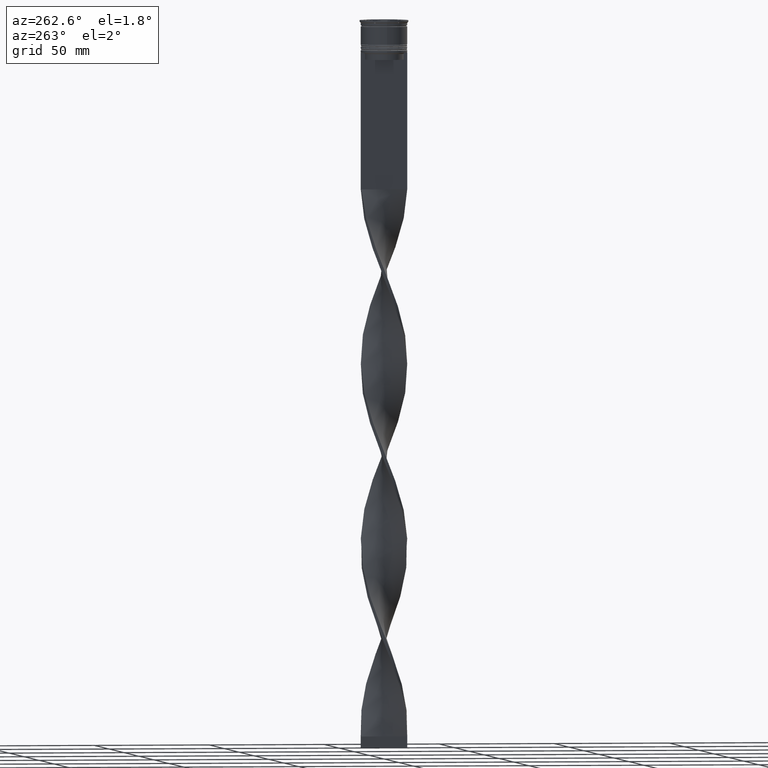
[diagram: clean part render]
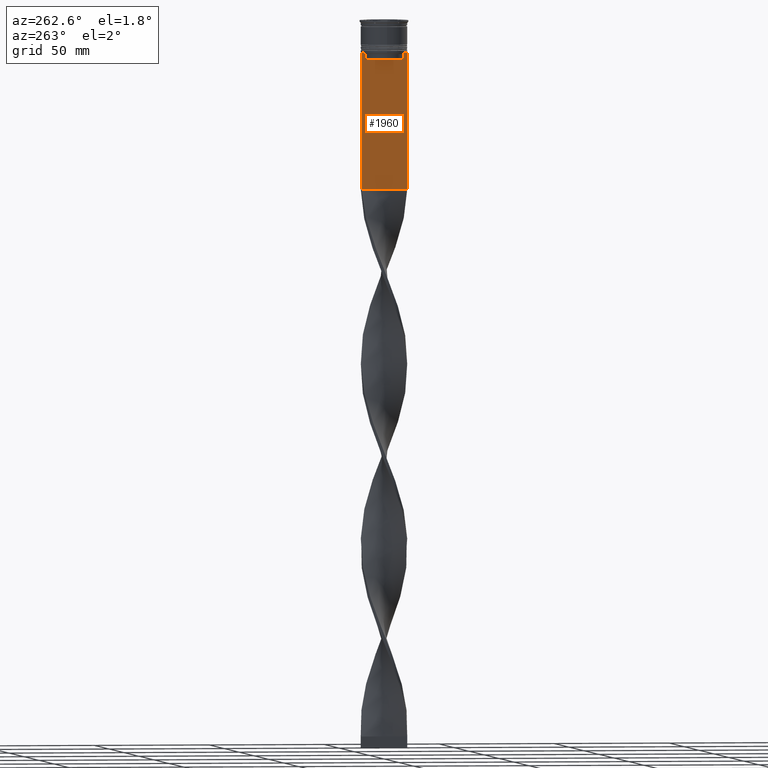
[diagram: same view with one face highlighted and labeled with its STEP entity id]
A machine part, auxiliary view. The second image highlights one B-rep face of the part: STEP entity #1960.
In plain terms, the highlighted planar face has unit normal (-1, 0, 0).
Its self-contained STEP definition (entity closure, byte-faithful):
#3 = ORIENTED_EDGE ( 'NONE', *, *, #1904, .F. ) ;
#14 = DIRECTION ( 'NONE',  ( 0.000000000000000000, 1.000000000000000000, 0.000000000000000000 ) ) ;
#27 = EDGE_CURVE ( 'NONE', #3605, #1946, #837, .T. ) ;
#54 = LINE ( 'NONE', #2979, #2338 ) ;
#92 = VECTOR ( 'NONE', #319, 1000.000000000000000 ) ;
#111 = EDGE_CURVE ( 'NONE', #2160, #4006, #1019, .T. ) ;
#116 = CARTESIAN_POINT ( 'NONE',  ( -0.7499999999999997780, -8.366450860430608927, -14.50000000000000000 ) ) ;
#160 = CARTESIAN_POINT ( 'NONE',  ( -0.7499999999999997780, 8.400000000000003908, -17.00000000000000000 ) ) ;
#173 = VECTOR ( 'NONE', #1155, 1000.000000000000000 ) ;
#308 = CARTESIAN_POINT ( 'NONE',  ( -0.7499999999999997780, -10.00000000000000533, -73.00000000000001421 ) ) ;
#319 = DIRECTION ( 'NONE',  ( 0.000000000000000000, 0.000000000000000000, -1.000000000000000000 ) ) ;
#336 = VERTEX_POINT ( 'NONE', #3247 ) ;
#433 = LINE ( 'NONE', #1075, #674 ) ;
#524 = ORIENTED_EDGE ( 'NONE', *, *, #3744, .F. ) ;
#528 = VERTEX_POINT ( 'NONE', #4259 ) ;
#573 = DIRECTION ( 'NONE',  ( 0.000000000000000000, 0.000000000000000000, -1.000000000000000000 ) ) ;
#597 = CARTESIAN_POINT ( 'NONE',  ( -0.7499999999999997780, 9.999999999999998224, -73.00000000000001421 ) ) ;
#674 = VECTOR ( 'NONE', #2391, 1000.000000000000000 ) ;
#706 = CARTESIAN_POINT ( 'NONE',  ( -0.7499999999999997780, 8.868342573446296839, -14.00000000000000178 ) ) ;
#772 = CARTESIAN_POINT ( 'NONE',  ( -0.7499999999999997780, 9.999999999999998224, 6.056171120131581098 ) ) ;
#779 = VERTEX_POINT ( 'NONE', #3832 ) ;
#837 = LINE ( 'NONE', #772, #1978 ) ;
#935 = EDGE_CURVE ( 'NONE', #528, #2528, #1041, .T. ) ;
#1019 = LINE ( 'NONE', #2990, #92 ) ;
#1041 = LINE ( 'NONE', #3427, #3986 ) ;
#1075 = CARTESIAN_POINT ( 'NONE',  ( -0.7499999999999997780, -8.366450860430608927, 0.000000000000000000 ) ) ;
#1111 = DIRECTION ( 'NONE',  ( 0.000000000000000000, 0.000000000000000000, -1.000000000000000000 ) ) ;
#1128 = CARTESIAN_POINT ( 'NONE',  ( -0.7499999999999997780, -8.868342573446296839, -14.00000000000000178 ) ) ;
#1155 = DIRECTION ( 'NONE',  ( 0.000000000000000000, -1.000000000000000000, 0.000000000000000000 ) ) ;
#1218 = LINE ( 'NONE', #1545, #4123 ) ;
#1262 = PLANE ( 'NONE',  #3496 ) ;
#1326 = EDGE_CURVE ( 'NONE', #2622, #1946, #1989, .T. ) ;
#1328 = CARTESIAN_POINT ( 'NONE',  ( -0.7499999999999997780, 8.366450860430608927, -14.50000000000000000 ) ) ;
#1394 = EDGE_CURVE ( 'NONE', #2390, #1464, #1410, .T. ) ;
#1410 = LINE ( 'NONE', #2757, #173 ) ;
#1417 = EDGE_CURVE ( 'NONE', #1464, #2160, #3010, .T. ) ;
#1464 = VERTEX_POINT ( 'NONE', #706 ) ;
#1472 = LINE ( 'NONE', #2722, #3029 ) ;
#1495 = DIRECTION ( 'NONE',  ( -1.000000000000000000, 0.000000000000000000, 0.000000000000000000 ) ) ;
#1545 = CARTESIAN_POINT ( 'NONE',  ( -0.7499999999999997780, -10.00000000000000533, 6.056171120131581098 ) ) ;
#1695 = CARTESIAN_POINT ( 'NONE',  ( -0.7499999999999997780, 8.868342573446296839, -14.00000000000000178 ) ) ;
#1720 = CARTESIAN_POINT ( 'NONE',  ( -0.7499999999999997780, 8.533766897779926808, -14.33335221373273782 ) ) ;
#1904 = EDGE_CURVE ( 'NONE', #2528, #2622, #1218, .T. ) ;
#1926 = CARTESIAN_POINT ( 'NONE',  ( -0.7499999999999997780, 9.999999999999998224, -14.00000000000000178 ) ) ;
#1945 = CARTESIAN_POINT ( 'NONE',  ( -0.7499999999999997780, 9.871550030263740894, -14.00000000000000178 ) ) ;
#1946 = VERTEX_POINT ( 'NONE', #597 ) ;
#1960 = ADVANCED_FACE ( 'NONE', ( #4220 ), #1262, .T. ) ;
#1972 = ORIENTED_EDGE ( 'NONE', *, *, #1394, .F. ) ;
#1978 = VECTOR ( 'NONE', #1111, 1000.000000000000000 ) ;
#1983 = DIRECTION ( 'NONE',  ( 0.000000000000000000, -1.000000000000000000, 0.000000000000000000 ) ) ;
#1989 = LINE ( 'NONE', #308, #3629 ) ;
#2065 = VECTOR ( 'NONE', #4203, 1000.000000000000000 ) ;
#2160 = VERTEX_POINT ( 'NONE', #1328 ) ;
#2338 = VECTOR ( 'NONE', #1983, 1000.000000000000000 ) ;
#2377 = CARTESIAN_POINT ( 'NONE',  ( -0.7499999999999997780, -8.868342573446296839, -14.00000000000000178 ) ) ;
#2390 = VERTEX_POINT ( 'NONE', #1945 ) ;
#2391 = DIRECTION ( 'NONE',  ( -0.000000000000000000, -0.000000000000000000, 1.000000000000000000 ) ) ;
#2398 = DIRECTION ( 'NONE',  ( 0.000000000000000000, -1.000000000000000000, 0.000000000000000000 ) ) ;
#2500 = CARTESIAN_POINT ( 'NONE',  ( -0.7499999999999997780, 8.366450860430608927, -17.00000000000000000 ) ) ;
#2505 = EDGE_CURVE ( 'NONE', #3605, #2390, #54, .T. ) ;
#2528 = VERTEX_POINT ( 'NONE', #2709 ) ;
#2622 = VERTEX_POINT ( 'NONE', #3200 ) ;
#2639 = ORIENTED_EDGE ( 'NONE', *, *, #3049, .F. ) ;
#2709 = CARTESIAN_POINT ( 'NONE',  ( -0.7499999999999997780, -10.00000000000000533, -14.00000000000000178 ) ) ;
#2722 = CARTESIAN_POINT ( 'NONE',  ( -0.7499999999999997780, -10.00000000000000533, -14.00000000000000178 ) ) ;
#2757 = CARTESIAN_POINT ( 'NONE',  ( -0.7499999999999997780, -10.00000000000000533, -14.00000000000000178 ) ) ;
#2814 = DIRECTION ( 'NONE',  ( 0.000000000000000000, 0.000000000000000000, 1.000000000000000000 ) ) ;
#2979 = CARTESIAN_POINT ( 'NONE',  ( -0.7499999999999997780, -10.00000000000000533, -14.00000000000000178 ) ) ;
#2990 = CARTESIAN_POINT ( 'NONE',  ( -0.7499999999999997780, 8.366450860430608927, 0.000000000000000000 ) ) ;
#3006 = EDGE_CURVE ( 'NONE', #779, #4237, #3934, .T. ) ;
#3010 = B_SPLINE_CURVE_WITH_KNOTS ( 'NONE', 3,
 ( #1695, #3325, #1720, #3343 ),
 .UNSPECIFIED., .F., .F.,
 ( 4, 4 ),
 ( 0.01512225952876174867, 0.01583070519299695222 ),
 .UNSPECIFIED. ) ;
#3029 = VECTOR ( 'NONE', #2398, 1000.000000000000000 ) ;
#3049 = EDGE_CURVE ( 'NONE', #4237, #528, #1472, .T. ) ;
#3053 = CARTESIAN_POINT ( 'NONE',  ( -0.7499999999999997780, -8.701063080777123204, -14.16668447713511547 ) ) ;
#3060 = ORIENTED_EDGE ( 'NONE', *, *, #2505, .F. ) ;
#3133 = CARTESIAN_POINT ( 'NONE',  ( -0.7499999999999997780, -10.00000000000000533, 6.056171120131581098 ) ) ;
#3187 = EDGE_CURVE ( 'NONE', #336, #779, #433, .T. ) ;
#3200 = CARTESIAN_POINT ( 'NONE',  ( -0.7499999999999998890, -10.00000000000000533, -73.00000000000001421 ) ) ;
#3247 = CARTESIAN_POINT ( 'NONE',  ( -0.7499999999999997780, -8.366450860430608927, -17.00000000000000000 ) ) ;
#3253 = EDGE_LOOP ( 'NONE', ( #3735, #1972, #3060, #4132, #4217, #3, #3451, #2639, #3646, #3294, #524, #3663 ) ) ;
#3294 = ORIENTED_EDGE ( 'NONE', *, *, #3187, .F. ) ;
#3325 = CARTESIAN_POINT ( 'NONE',  ( -0.7499999999999997780, 8.701063075415252257, -14.16668448247791723 ) ) ;
#3343 = CARTESIAN_POINT ( 'NONE',  ( -0.7499999999999997780, 8.366450860430608927, -14.50000000000000000 ) ) ;
#3384 = DIRECTION ( 'NONE',  ( 0.000000000000000000, -1.000000000000000000, 0.000000000000000000 ) ) ;
#3427 = CARTESIAN_POINT ( 'NONE',  ( -0.7499999999999997780, -10.00000000000000533, -14.00000000000000178 ) ) ;
#3451 = ORIENTED_EDGE ( 'NONE', *, *, #935, .F. ) ;
#3474 = LINE ( 'NONE', #160, #2065 ) ;
#3496 = AXIS2_PLACEMENT_3D ( 'NONE', #3133, #1495, #2814 ) ;
#3605 = VERTEX_POINT ( 'NONE', #1926 ) ;
#3629 = VECTOR ( 'NONE', #14, 1000.000000000000000 ) ;
#3646 = ORIENTED_EDGE ( 'NONE', *, *, #3006, .F. ) ;
#3663 = ORIENTED_EDGE ( 'NONE', *, *, #111, .F. ) ;
#3735 = ORIENTED_EDGE ( 'NONE', *, *, #1417, .F. ) ;
#3744 = EDGE_CURVE ( 'NONE', #4006, #336, #3474, .T. ) ;
#3832 = CARTESIAN_POINT ( 'NONE',  ( -0.7499999999999997780, -8.366450860430608927, -14.50000000000000000 ) ) ;
#3934 = B_SPLINE_CURVE_WITH_KNOTS ( 'NONE', 3,
 ( #116, #4084, #3053, #1128 ),
 .UNSPECIFIED., .F., .F.,
 ( 4, 4 ),
 ( 0.03866293624047253963, 0.03937282246709321309 ),
 .UNSPECIFIED. ) ;
#3986 = VECTOR ( 'NONE', #3384, 1000.000000000000000 ) ;
#4006 = VERTEX_POINT ( 'NONE', #2500 ) ;
#4084 = CARTESIAN_POINT ( 'NONE',  ( -0.7499999999999997780, -8.533766903463440912, -14.33335220807192201 ) ) ;
#4123 = VECTOR ( 'NONE', #573, 1000.000000000000000 ) ;
#4132 = ORIENTED_EDGE ( 'NONE', *, *, #27, .T. ) ;
#4203 = DIRECTION ( 'NONE',  ( 0.000000000000000000, -1.000000000000000000, 0.000000000000000000 ) ) ;
#4217 = ORIENTED_EDGE ( 'NONE', *, *, #1326, .F. ) ;
#4220 = FACE_OUTER_BOUND ( 'NONE', #3253, .T. ) ;
#4237 = VERTEX_POINT ( 'NONE', #2377 ) ;
#4259 = CARTESIAN_POINT ( 'NONE',  ( -0.7499999999999997780, -9.871550030263740894, -14.00000000000000178 ) ) ;